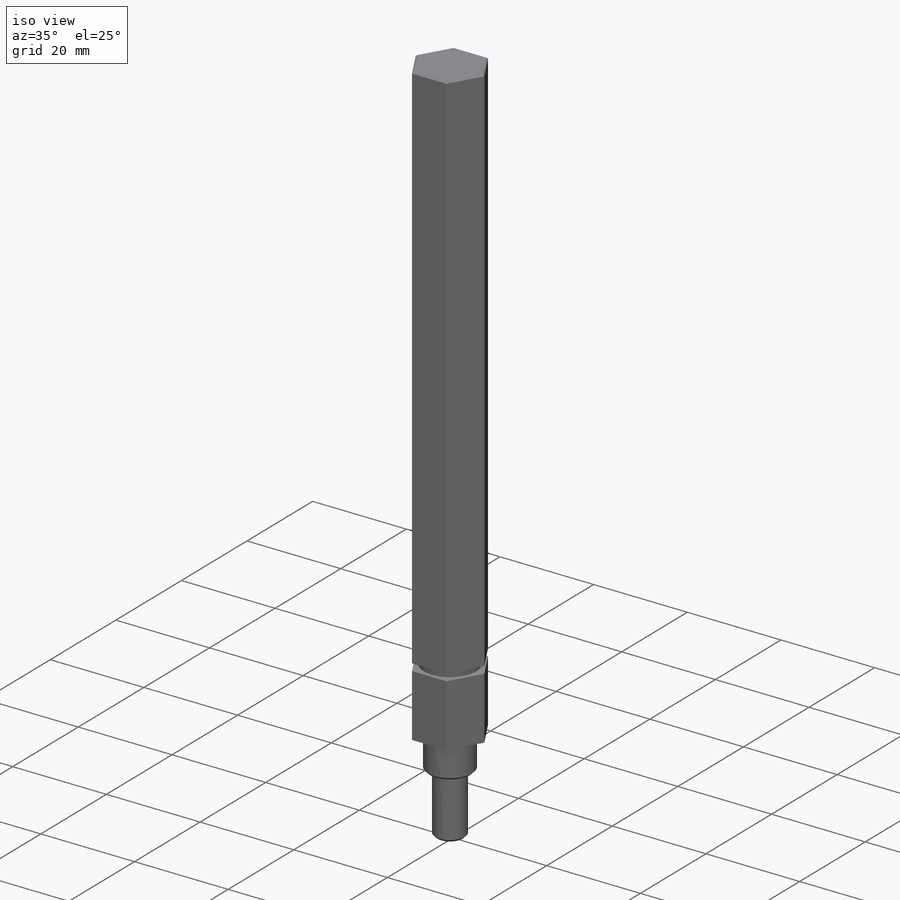
[diagram: iso view]
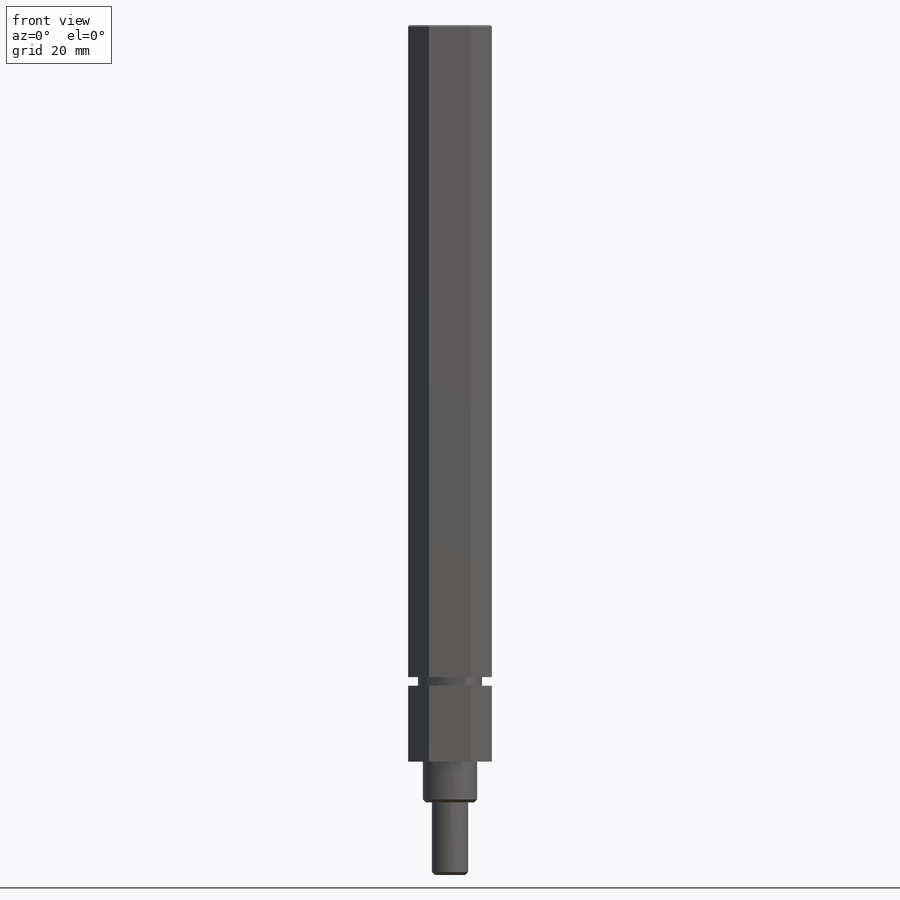
[diagram: front view]
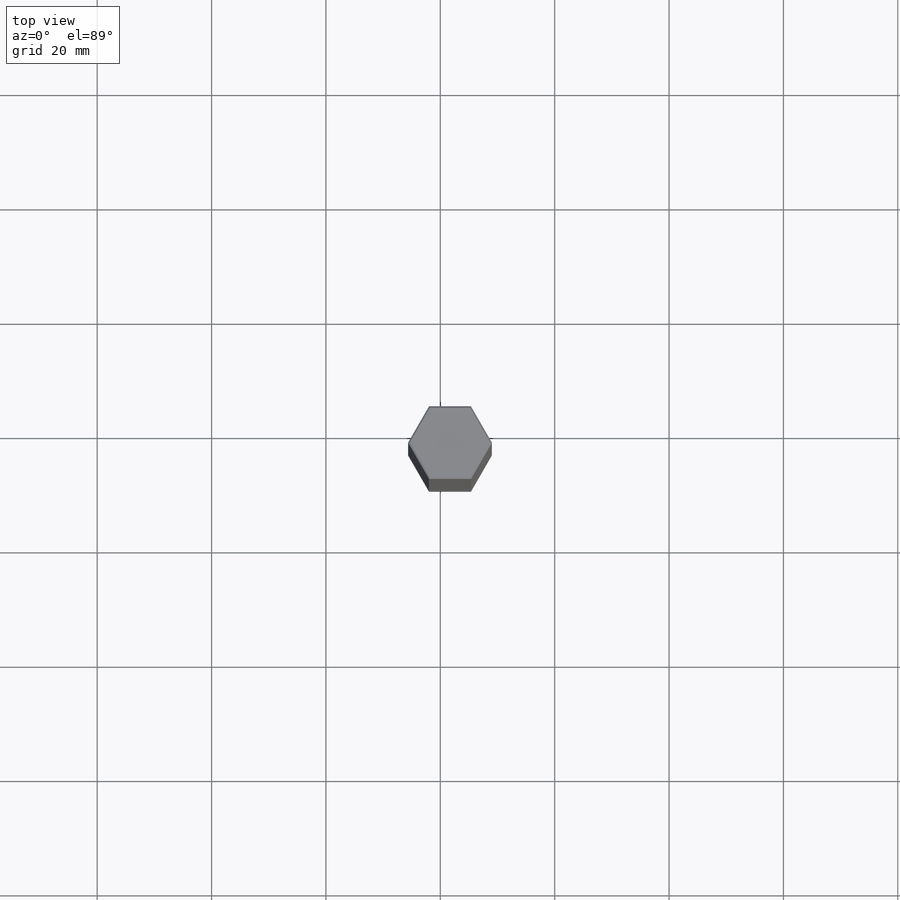
[diagram: top view]
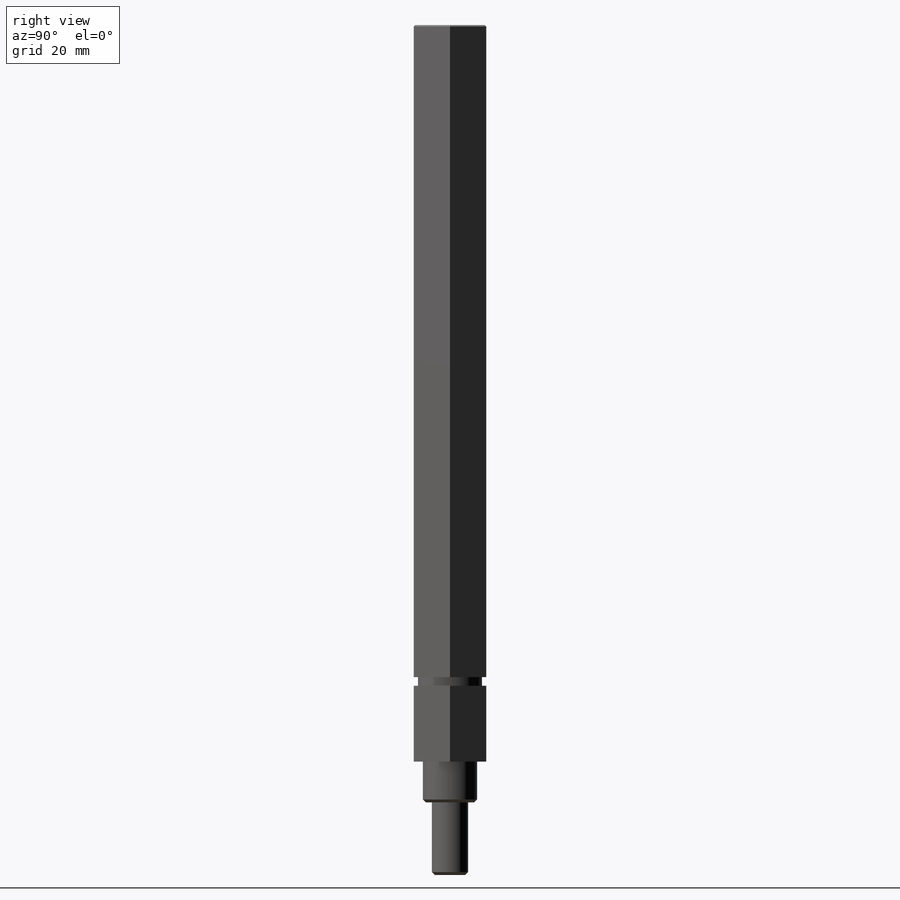
[diagram: right view]
SOLIDWORKS PART (.sldprt)
format: sldprt  version: not decoded by parser v0  size: 165,376 bytes
history: native  units: mm
features: sketch x4, plane x3, extrude x3, chamfer x2, material x1, revolve x1 (+12 scaffold rows collapsed)
feature tree (26):
  scaffold x12  (default folders/planes/origin — collapsed)
  material  "Material <not specified>"
  plane  "Plane1"
  sketch  "Sketch1"
  extrude  "Boss-Extrude1"  Depth=13.2842mm
  sketch  "Sketch2"
  extrude  "Boss-Extrude2"  Depth=1.4986mm
  plane  "Plane2"  Offset=14.7828mm
  sketch  "Sketch3"
  extrude  "Boss-Extrude3"  Depth=114.04854mm
  plane  "Plane3"
  sketch  "Sketch4"
  revolve  "Revolve1"  Angle=360deg
  chamfer  "Chamfer1"  Distance=0.508mm Angle=45deg
  chamfer  "Chamfer2"  Distance=0.254mm Angle=45deg
decode coverage: 6 of 10 modeling features carry decoded parameters
note: suppression state not decoded; provenance and decode notes live in map.json
